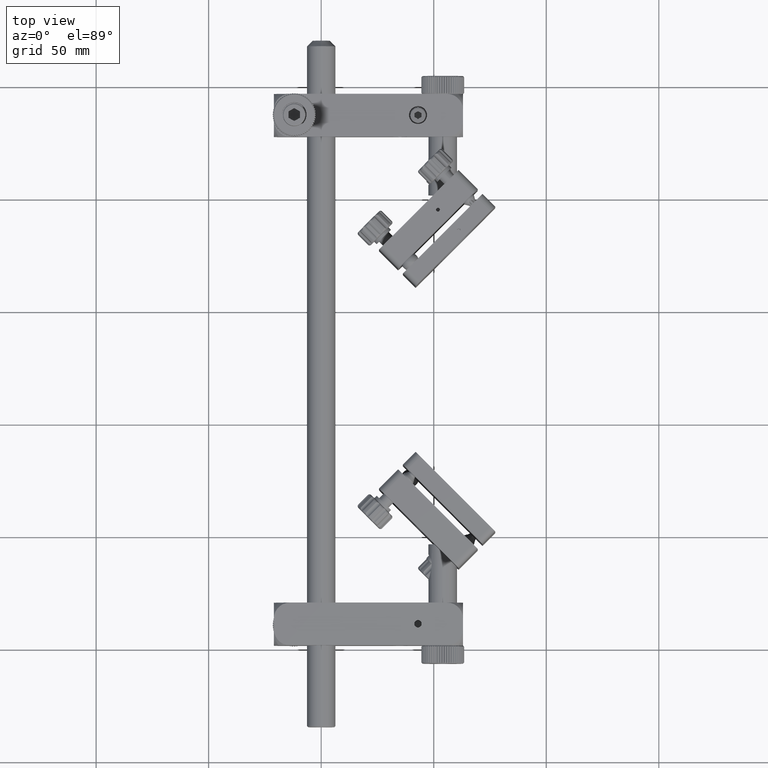
[diagram: clean part render]
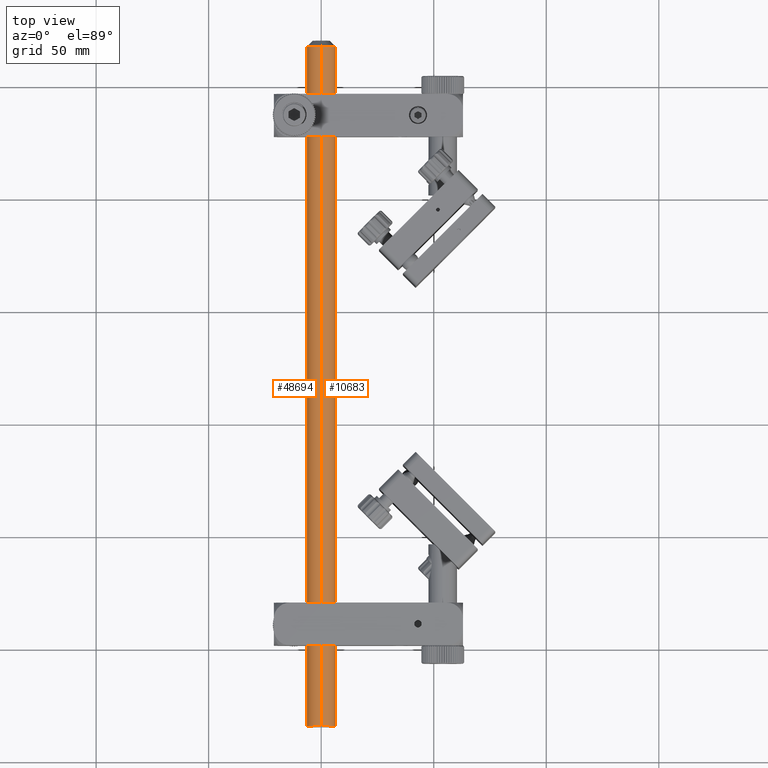
[diagram: same view with one multi-face feature highlighted, each face labeled with its STEP entity id]
A machine part, top view. The highlighted faces form ONE feature: a constant-radius fillet chain: 2 tangent blend faces with common blend radius 6.35 mm. The faces share edges in the B-rep.
Their STEP definitions:
[1] entity #10683 (Cylinder):
#203 = CARTESIAN_POINT ( 'NONE',  ( 2.150823503448767065E-13, 317.7465331105718178, -6.350000000000036060 ) ) ;
#1745 = VERTEX_POINT ( 'NONE', #37130 ) ;
#2747 = LINE ( 'NONE', #22125, #31841 ) ;
#3402 = DIRECTION ( 'NONE',  ( -2.220446049250315546E-16, 0.000000000000000000, 1.000000000000000000 ) ) ;
#8687 = AXIS2_PLACEMENT_3D ( 'NONE', #52779, #39239, #28408 ) ;
#9010 = FACE_OUTER_BOUND ( 'NONE', #38252, .T. ) ;
#9290 = DIRECTION ( 'NONE',  ( -1.276756478318930021E-15, -1.000000000000000000, 1.723985658938550258E-16 ) ) ;
#10683 = ADVANCED_FACE ( 'NONE', ( #9010 ), #57224, .T. ) ;
#11565 = CIRCLE ( 'NONE', #40072, 6.349999999999987210 ) ;
#16724 = ORIENTED_EDGE ( 'NONE', *, *, #55830, .T. ) ;
#18952 = ORIENTED_EDGE ( 'NONE', *, *, #24690, .T. ) ;
#19272 = LINE ( 'NONE', #58222, #41413 ) ;
#22125 = CARTESIAN_POINT ( 'NONE',  ( 4.522789155487038446E-13, 352.5271179219657824, -6.350000000000048495 ) ) ;
#22970 = VERTEX_POINT ( 'NONE', #58931 ) ;
#23090 = ORIENTED_EDGE ( 'NONE', *, *, #54235, .T. ) ;
#23579 = DIRECTION ( 'NONE',  ( 2.220446049250344635E-16, 0.000000000000000000, -1.000000000000000000 ) ) ;
#24690 = EDGE_CURVE ( 'NONE', #1745, #22970, #11565, .T. ) ;
#28408 = DIRECTION ( 'NONE',  ( -2.220446049250267228E-16, 0.000000000000000000, 1.000000000000000000 ) ) ;
#28829 = VERTEX_POINT ( 'NONE', #203 ) ;
#29333 = CARTESIAN_POINT ( 'NONE',  ( 4.056849446123031440E-13, 317.7465331105718178, -5.477904662600691624E-14 ) ) ;
#29615 = AXIS2_PLACEMENT_3D ( 'NONE', #29333, #9290, #23579 ) ;
#31841 = VECTOR ( 'NONE', #60772, 1000.000000000000000 ) ;
#33773 = VERTEX_POINT ( 'NONE', #42909 ) ;
#37130 = CARTESIAN_POINT ( 'NONE',  ( 1.869450491871229212E-14, 15.74653311057189242, 6.349999999999985434 ) ) ;
#38252 = EDGE_LOOP ( 'NONE', ( #18952, #16724, #23090, #56754 ) ) ;
#39239 = DIRECTION ( 'NONE',  ( 1.276756478318930021E-15, 1.000000000000000000, -1.723985658938550258E-16 ) ) ;
#39624 = EDGE_CURVE ( 'NONE', #1745, #33773, #19272, .T. ) ;
#40072 = AXIS2_PLACEMENT_3D ( 'NONE', #41817, #61109, #3402 ) ;
#41413 = VECTOR ( 'NONE', #43987, 1000.000000000000000 ) ;
#41817 = CARTESIAN_POINT ( 'NONE',  ( 2.010448815998623966E-14, 15.74653311057189242, -2.714679726062694855E-15 ) ) ;
#42909 = CARTESIAN_POINT ( 'NONE',  ( 2.114847331448710346E-13, 317.7465331105718178, 6.349999999999925926 ) ) ;
#43987 = DIRECTION ( 'NONE',  ( 1.276756478318930021E-15, 1.000000000000000000, -1.723985658938550258E-16 ) ) ;
#48834 = CIRCLE ( 'NONE', #29615, 6.349999999999987210 ) ;
#52779 = CARTESIAN_POINT ( 'NONE',  ( 4.500912815899713692E-13, 352.5271179219657824, -6.077516956844078599E-14 ) ) ;
#54235 = EDGE_CURVE ( 'NONE', #28829, #33773, #48834, .T. ) ;
#55830 = EDGE_CURVE ( 'NONE', #22970, #28829, #2747, .T. ) ;
#56754 = ORIENTED_EDGE ( 'NONE', *, *, #39624, .F. ) ;
#57224 = CYLINDRICAL_SURFACE ( 'NONE', #8687, 6.349999999999987210 ) ;
#58222 = CARTESIAN_POINT ( 'NONE',  ( 4.486812983486974911E-13, 352.5271179219657824, 6.349999999999926814 ) ) ;
#58931 = CARTESIAN_POINT ( 'NONE',  ( 2.150823503448770851E-13, 15.74653311057189242, -6.349999999999983658 ) ) ;
#60772 = DIRECTION ( 'NONE',  ( 1.276756478318930021E-15, 1.000000000000000000, -1.723985658938550258E-16 ) ) ;
#61109 = DIRECTION ( 'NONE',  ( 1.276756478318930021E-15, 1.000000000000000000, -1.723985658938550258E-16 ) ) ;
[2] entity #48694 (Cylinder):
#203 = CARTESIAN_POINT ( 'NONE',  ( 2.150823503448767065E-13, 317.7465331105718178, -6.350000000000036060 ) ) ;
#1745 = VERTEX_POINT ( 'NONE', #37130 ) ;
#2747 = LINE ( 'NONE', #22125, #31841 ) ;
#5868 = DIRECTION ( 'NONE',  ( 1.276756478318930021E-15, 1.000000000000000000, -1.723985658938550258E-16 ) ) ;
#11187 = ORIENTED_EDGE ( 'NONE', *, *, #33729, .T. ) ;
#19272 = LINE ( 'NONE', #58222, #41413 ) ;
#19428 = AXIS2_PLACEMENT_3D ( 'NONE', #27359, #55256, #46072 ) ;
#22125 = CARTESIAN_POINT ( 'NONE',  ( 4.522789155487038446E-13, 352.5271179219657824, -6.350000000000048495 ) ) ;
#22970 = VERTEX_POINT ( 'NONE', #58931 ) ;
#24739 = AXIS2_PLACEMENT_3D ( 'NONE', #25524, #5868, #25226 ) ;
#25226 = DIRECTION ( 'NONE',  ( -2.220446049250267228E-16, 0.000000000000000000, 1.000000000000000000 ) ) ;
#25524 = CARTESIAN_POINT ( 'NONE',  ( 4.500912815899713692E-13, 352.5271179219657824, -6.077516956844078599E-14 ) ) ;
#26170 = CYLINDRICAL_SURFACE ( 'NONE', #24739, 6.349999999999987210 ) ;
#26268 = ORIENTED_EDGE ( 'NONE', *, *, #39624, .T. ) ;
#27359 = CARTESIAN_POINT ( 'NONE',  ( 4.056849446123031440E-13, 317.7465331105718178, -5.477904662600691624E-14 ) ) ;
#27730 = AXIS2_PLACEMENT_3D ( 'NONE', #53028, #43856, #38529 ) ;
#28829 = VERTEX_POINT ( 'NONE', #203 ) ;
#30863 = ORIENTED_EDGE ( 'NONE', *, *, #41816, .T. ) ;
#31841 = VECTOR ( 'NONE', #60772, 1000.000000000000000 ) ;
#33124 = ORIENTED_EDGE ( 'NONE', *, *, #55830, .F. ) ;
#33729 = EDGE_CURVE ( 'NONE', #22970, #1745, #56026, .T. ) ;
#33773 = VERTEX_POINT ( 'NONE', #42909 ) ;
#37130 = CARTESIAN_POINT ( 'NONE',  ( 1.869450491871229212E-14, 15.74653311057189242, 6.349999999999985434 ) ) ;
#38529 = DIRECTION ( 'NONE',  ( -2.220446049250315546E-16, 0.000000000000000000, 1.000000000000000000 ) ) ;
#39624 = EDGE_CURVE ( 'NONE', #1745, #33773, #19272, .T. ) ;
#40753 = CIRCLE ( 'NONE', #19428, 6.349999999999987210 ) ;
#41413 = VECTOR ( 'NONE', #43987, 1000.000000000000000 ) ;
#41816 = EDGE_CURVE ( 'NONE', #33773, #28829, #40753, .T. ) ;
#42909 = CARTESIAN_POINT ( 'NONE',  ( 2.114847331448710346E-13, 317.7465331105718178, 6.349999999999925926 ) ) ;
#43856 = DIRECTION ( 'NONE',  ( 1.276756478318930021E-15, 1.000000000000000000, -1.723985658938550258E-16 ) ) ;
#43987 = DIRECTION ( 'NONE',  ( 1.276756478318930021E-15, 1.000000000000000000, -1.723985658938550258E-16 ) ) ;
#45535 = EDGE_LOOP ( 'NONE', ( #33124, #11187, #26268, #30863 ) ) ;
#46072 = DIRECTION ( 'NONE',  ( 2.220446049250344635E-16, 0.000000000000000000, -1.000000000000000000 ) ) ;
#48694 = ADVANCED_FACE ( 'NONE', ( #54370 ), #26170, .T. ) ;
#53028 = CARTESIAN_POINT ( 'NONE',  ( 2.010448815998623966E-14, 15.74653311057189242, -2.714679726062694855E-15 ) ) ;
#54370 = FACE_OUTER_BOUND ( 'NONE', #45535, .T. ) ;
#55256 = DIRECTION ( 'NONE',  ( -1.276756478318930021E-15, -1.000000000000000000, 1.723985658938550258E-16 ) ) ;
#55830 = EDGE_CURVE ( 'NONE', #22970, #28829, #2747, .T. ) ;
#56026 = CIRCLE ( 'NONE', #27730, 6.349999999999987210 ) ;
#58222 = CARTESIAN_POINT ( 'NONE',  ( 4.486812983486974911E-13, 352.5271179219657824, 6.349999999999926814 ) ) ;
#58931 = CARTESIAN_POINT ( 'NONE',  ( 2.150823503448770851E-13, 15.74653311057189242, -6.349999999999983658 ) ) ;
#60772 = DIRECTION ( 'NONE',  ( 1.276756478318930021E-15, 1.000000000000000000, -1.723985658938550258E-16 ) ) ;